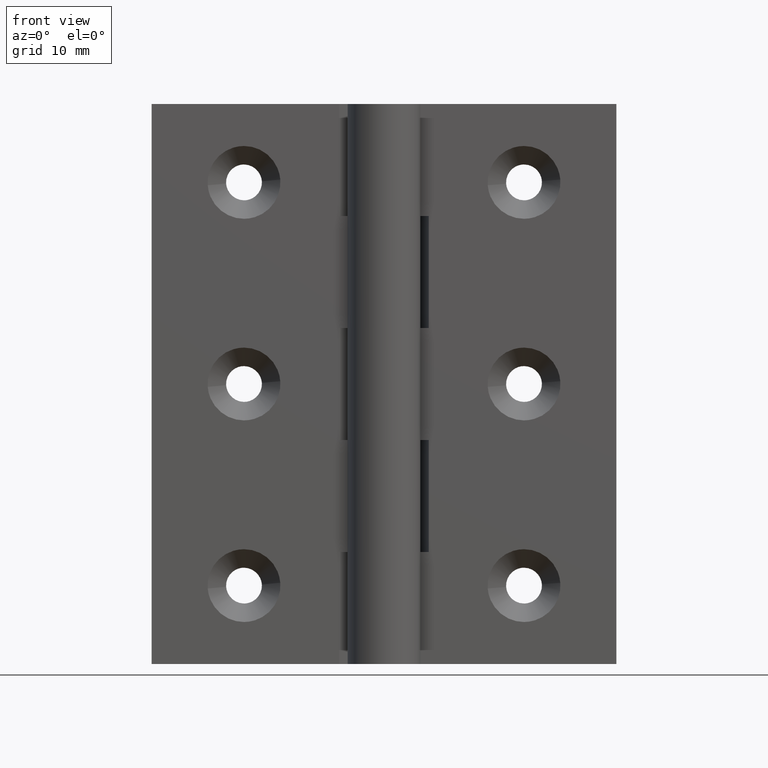
[diagram: clean part render]
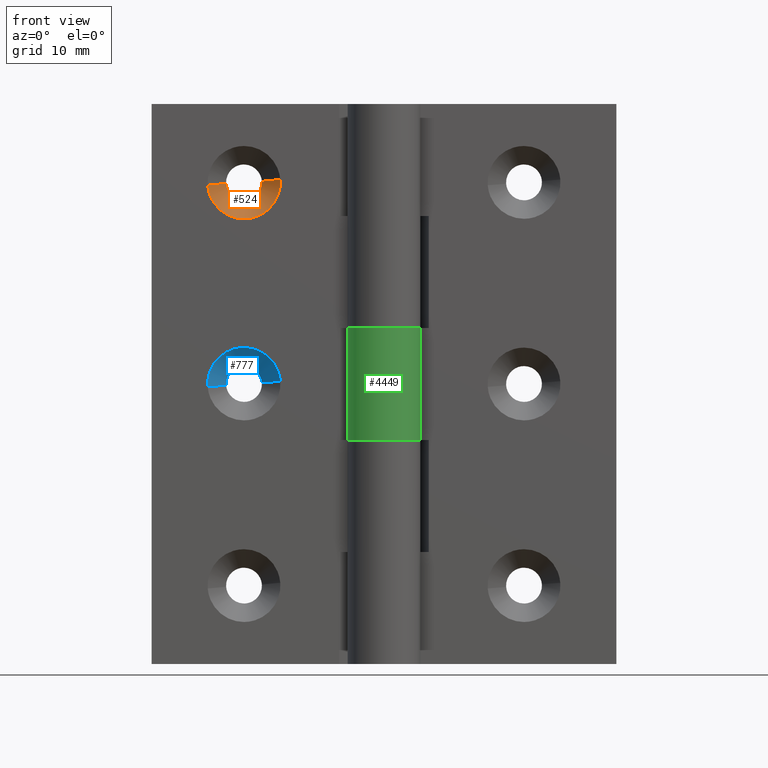
[diagram: same view with three faces highlighted in distinct colors, each labeled with its STEP entity id]
A machine part, front view with three faces highlighted in distinct colors.
Their STEP definitions:

[orange] entity #524 — the highlighted face is a freeform B-spline surface patch.
#265=CARTESIAN_POINT('',(-14.097007699373471,1.900001999909952,42.902322694046831));
#266=VERTEX_POINT('',#265);
#272=CARTESIAN_POINT('',(-12.499991999999899,1.900002000000000,41.399999999999999));
#273=VERTEX_POINT('',#272);
#274=CARTESIAN_POINT('',(-12.499991999999899,1.900002000000000,41.399999999999999));
#275=CARTESIAN_POINT('',(-13.979990768739732,1.900001999954976,41.413928623950511));
#276=CARTESIAN_POINT('',(-14.097007699373476,1.900001999909952,42.902322694046831));
#284=(BOUNDED_CURVE()B_SPLINE_CURVE(2,(#274,#275,#276),.UNSPECIFIED.,.F.,.U.)B_SPLINE_CURVE_WITH_KNOTS((3,3),(0.500000000000000,0.736331300558734),.UNSPECIFIED.)CURVE()GEOMETRIC_REPRESENTATION_ITEM()RATIONAL_B_SPLINE_CURVE((1.0,0.723120658691932,0.969723356017315))REPRESENTATION_ITEM(''));
#285=EDGE_CURVE('',#273,#266,#284,.T.);
#287=CARTESIAN_POINT('',(-10.902976322527110,1.900001999909949,43.097677664029021));
#288=VERTEX_POINT('',#287);
#289=CARTESIAN_POINT('',(-10.902976322527104,1.900001999909950,43.097677664029021));
#290=CARTESIAN_POINT('',(-10.899991999955720,1.900001999911255,43.048884421667537));
#291=CARTESIAN_POINT('',(-10.899991999956420,1.900001999912643,43.000000000004178));
#292=CARTESIAN_POINT('',(-10.899991999979202,1.900001999958038,41.400000000001995));
#293=CARTESIAN_POINT('',(-12.499991999999899,1.900002000000000,41.399999999999999));
#301=(BOUNDED_CURVE()B_SPLINE_CURVE(2,(#289,#290,#291,#292,#293),.UNSPECIFIED.,.F.,.U.)B_SPLINE_CURVE_WITH_KNOTS((3,2,3),(0.239332962158890,0.250000000000000,0.500000000000000),.UNSPECIFIED.)CURVE()GEOMETRIC_REPRESENTATION_ITEM()RATIONAL_B_SPLINE_CURVE((0.976072041495149,0.987502787806049,1.0,0.707106781186548,1.0))REPRESENTATION_ITEM(''));
#302=EDGE_CURVE('',#288,#273,#301,.T.);
#418=CARTESIAN_POINT('',(-9.260010665359770,0.250001999981075,43.254992061261852));
#419=VERTEX_POINT('',#418);
#420=CARTESIAN_POINT('',(-10.902976322527110,1.900001999909949,43.097677664029021));
#421=CARTESIAN_POINT('',(-9.260010665359770,0.250001999981075,43.254992061261852));
#422=QUASI_UNIFORM_CURVE('',1,(#420,#421),.UNSPECIFIED.,.F.,.U.);
#423=EDGE_CURVE('',#288,#419,#422,.T.);
#440=CARTESIAN_POINT('',(-15.739973334640030,0.250001999981076,42.745007938738162));
#441=VERTEX_POINT('',#440);
#457=CARTESIAN_POINT('',(-14.097007699373471,1.900001999909952,42.902322694046831));
#458=CARTESIAN_POINT('',(-15.739973334640030,0.250001999981076,42.745007938738162));
#459=QUASI_UNIFORM_CURVE('',1,(#457,#458),.UNSPECIFIED.,.F.,.U.);
#460=EDGE_CURVE('',#266,#441,#459,.T.);
#466=CARTESIAN_POINT('',(-14.057761516635404,1.941252000000000,42.926298323332155));
#467=CARTESIAN_POINT('',(-14.055861671773330,1.941252000000000,42.902158505547661));
#468=CARTESIAN_POINT('',(-13.931638778490631,1.941252000000000,41.323756990577714));
#469=CARTESIAN_POINT('',(-12.377693884534120,1.941252000000000,41.446055106043488));
#470=CARTESIAN_POINT('',(-10.823748990577611,1.941252000000000,41.568353221509263));
#471=CARTESIAN_POINT('',(-10.946914664080634,1.941252000000000,43.133321485507551));
#472=CARTESIAN_POINT('',(-10.947777138681614,1.941252000000000,43.144280264367239));
#473=CARTESIAN_POINT('',(-15.790202342544017,0.207720750000000,42.844332543264123));
#474=CARTESIAN_POINT('',(-15.786189624906610,0.207720750000000,42.793346131414665));
#475=CARTESIAN_POINT('',(-15.523814835892729,0.207720750000000,39.459558344593695));
#476=CARTESIAN_POINT('',(-12.241682590243160,0.207720750000000,39.717867754350429));
#477=CARTESIAN_POINT('',(-8.959550344593591,0.207720750000000,39.976177164107170));
#478=CARTESIAN_POINT('',(-9.219692148935298,0.207720750000000,43.281592190510764));
#479=CARTESIAN_POINT('',(-9.221513806646525,0.207720750000000,43.304738546348858));
#487=(BOUNDED_SURFACE()B_SPLINE_SURFACE(2,1,((#466,#473),(#467,#474),(#468,#475),(#469,#476),(#470,#477),(#471,#478),(#472,#479)),.UNSPECIFIED.,.F.,.F.,.U.)B_SPLINE_SURFACE_WITH_KNOTS((3,1,2,1,3),(2,2),(0.0,0.122207408300087,5.577037587886674,11.031867767473260,11.086752681912611),(0.0,2.452182741784073),.UNSPECIFIED.)GEOMETRIC_REPRESENTATION_ITEM()RATIONAL_B_SPLINE_SURFACE(((1.013123679381922,1.013123679381922),(1.006561839690961,1.006561839690961),(0.707106781186548,0.707106781186548),(1.0,1.0),(0.707106781186548,0.707106781186548),(1.002947006364121,1.002947006364121),(1.005894012728242,1.005894012728242)))REPRESENTATION_ITEM('')SURFACE());
#488=ORIENTED_EDGE('',*,*,#302,.T.);
#489=ORIENTED_EDGE('',*,*,#285,.T.);
#490=ORIENTED_EDGE('',*,*,#460,.T.);
#491=CARTESIAN_POINT('',(-12.499991999999899,0.250002000000000,39.749999999999993));
#492=VERTEX_POINT('',#491);
#493=CARTESIAN_POINT('',(-12.499991999999899,0.250002000000000,39.749999999999993));
#494=CARTESIAN_POINT('',(-15.504261097763770,0.250001999990538,39.749999999999240));
#495=CARTESIAN_POINT('',(-15.739973334640036,0.250001999981076,42.745007938738148));
#503=(BOUNDED_CURVE()B_SPLINE_CURVE(2,(#493,#494,#495),.UNSPECIFIED.,.F.,.U.)B_SPLINE_CURVE_WITH_KNOTS((3,3),(0.500000000000000,0.736331300625102),.UNSPECIFIED.)CURVE()GEOMETRIC_REPRESENTATION_ITEM()RATIONAL_B_SPLINE_CURVE((1.0,0.723120658614176,0.969723356155820))REPRESENTATION_ITEM(''));
#504=EDGE_CURVE('',#492,#441,#503,.T.);
#505=ORIENTED_EDGE('',*,*,#504,.F.);
#506=CARTESIAN_POINT('',(-9.260010665359770,0.250001999981076,43.254992061261845));
#507=CARTESIAN_POINT('',(-9.249991999981377,0.250001999981419,43.127692847849147));
#508=CARTESIAN_POINT('',(-9.249991999981747,0.250001999981791,43.000000000001428));
#509=CARTESIAN_POINT('',(-9.249991999991181,0.250001999991253,39.750000000000675));
#510=CARTESIAN_POINT('',(-12.499991999999899,0.250002000000000,39.749999999999993));
#518=(BOUNDED_CURVE()B_SPLINE_CURVE(2,(#506,#507,#508,#509,#510),.UNSPECIFIED.,.F.,.U.)B_SPLINE_CURVE_WITH_KNOTS((3,2,3),(0.236331300625102,0.250000000000000,0.500000000000000),.UNSPECIFIED.)CURVE()GEOMETRIC_REPRESENTATION_ITEM()RATIONAL_B_SPLINE_CURVE((0.969723356155820,0.983986122572371,1.0,0.707106781186547,1.0))REPRESENTATION_ITEM(''));
#519=EDGE_CURVE('',#419,#492,#518,.T.);
#520=ORIENTED_EDGE('',*,*,#519,.F.);
#521=ORIENTED_EDGE('',*,*,#423,.F.);
#522=EDGE_LOOP('',(#488,#489,#490,#505,#520,#521));
#523=FACE_OUTER_BOUND('',#522,.T.);
#524=ADVANCED_FACE('',(#523),#487,.F.);

[blue] entity #777 — the highlighted face is a freeform B-spline surface patch.
#577=CARTESIAN_POINT('',(-14.097007699373471,1.900001999909951,24.902322694046831));
#578=VERTEX_POINT('',#577);
#599=CARTESIAN_POINT('',(-10.902976322527110,1.900001999909949,25.097677664029021));
#600=VERTEX_POINT('',#599);
#658=CARTESIAN_POINT('',(-12.499991999999899,1.900002000000000,26.600000000000001));
#659=VERTEX_POINT('',#658);
#660=CARTESIAN_POINT('',(-12.499991999999899,1.900002000000000,26.600000000000001));
#661=CARTESIAN_POINT('',(-11.019993242210456,1.900001999954976,26.586071555087411));
#662=CARTESIAN_POINT('',(-10.902976322527106,1.900001999909950,25.097677664029018));
#670=(BOUNDED_CURVE()B_SPLINE_CURVE(2,(#660,#661,#662),.UNSPECIFIED.,.F.,.U.)B_SPLINE_CURVE_WITH_KNOTS((3,3),(0.0,0.236331300558734),.UNSPECIFIED.)CURVE()GEOMETRIC_REPRESENTATION_ITEM()RATIONAL_B_SPLINE_CURVE((1.0,0.723120658691931,0.969723356017315))REPRESENTATION_ITEM(''));
#671=EDGE_CURVE('',#659,#600,#670,.T.);
#673=CARTESIAN_POINT('',(-14.097007699373469,1.900001999909952,24.902322694046831));
#674=CARTESIAN_POINT('',(-14.099992000044045,1.900001999911257,24.951115757872387));
#675=CARTESIAN_POINT('',(-14.099992000043351,1.900001999912645,24.999999999995818));
#676=CARTESIAN_POINT('',(-14.099992000020579,1.900001999958038,26.599999999997998));
#677=CARTESIAN_POINT('',(-12.499991999999899,1.900002000000000,26.600000000000001));
#685=(BOUNDED_CURVE()B_SPLINE_CURVE(2,(#673,#674,#675,#676,#677),.UNSPECIFIED.,.F.,.U.)B_SPLINE_CURVE_WITH_KNOTS((3,2,3),(0.739333000846576,0.750000000000000,1.0),.UNSPECIFIED.)CURVE()GEOMETRIC_REPRESENTATION_ITEM()RATIONAL_B_SPLINE_CURVE((0.976072124410238,0.987502833131493,1.0,0.707106781186548,1.0))REPRESENTATION_ITEM(''));
#686=EDGE_CURVE('',#578,#659,#685,.T.);
#707=CARTESIAN_POINT('',(-10.942222510215357,1.941252000000000,25.073702017841651));
#708=CARTESIAN_POINT('',(-10.944122341827565,1.941252000000001,25.097841667270625));
#709=CARTESIAN_POINT('',(-11.068345221509171,1.941252000000000,26.676243009422279));
#710=CARTESIAN_POINT('',(-12.622290115465679,1.941252000000000,26.553944893956508));
#711=CARTESIAN_POINT('',(-14.176235009422188,1.941252000000000,26.431646778490727));
#712=CARTESIAN_POINT('',(-14.053069335987313,1.941252000000000,24.866678515358441));
#713=CARTESIAN_POINT('',(-14.052206861453712,1.941252000000001,24.855719737354647));
#714=CARTESIAN_POINT('',(-9.209781714168477,0.207720750000000,25.155668177339042));
#715=CARTESIAN_POINT('',(-9.213794403820462,0.207720750000000,25.206654233599870));
#716=CARTESIAN_POINT('',(-9.476169164107073,0.207720750000000,28.540441655406315));
#717=CARTESIAN_POINT('',(-12.758301409756641,0.207720750000000,28.282132245649571));
#718=CARTESIAN_POINT('',(-16.040433655406208,0.207720750000000,28.023822835892837));
#719=CARTESIAN_POINT('',(-15.780291851208455,0.207720750000000,24.718407811318340));
#720=CARTESIAN_POINT('',(-15.778470193639510,0.207720750000000,24.695261457287959));
#728=(BOUNDED_SURFACE()B_SPLINE_SURFACE(2,1,((#707,#714),(#708,#715),(#709,#716),(#710,#717),(#711,#718),(#712,#719),(#713,#720)),.UNSPECIFIED.,.F.,.F.,.U.)B_SPLINE_SURFACE_WITH_KNOTS((3,1,2,1,3),(2,2),(0.0,0.122206539077062,5.577036718663656,11.031866898250250,11.086751808365110),(0.0,2.452182733369774),.UNSPECIFIED.)GEOMETRIC_REPRESENTATION_ITEM()RATIONAL_B_SPLINE_SURFACE(((1.013123586037300,1.013123586037300),(1.006561793018650,1.006561793018650),(0.707106781186548,0.707106781186548),(1.0,1.0),(0.707106781186548,0.707106781186548),(1.002947006131921,1.002947006131921),(1.005894012263841,1.005894012263841)))REPRESENTATION_ITEM('')SURFACE());
#729=ORIENTED_EDGE('',*,*,#671,.T.);
#730=CARTESIAN_POINT('',(-9.260010665359770,0.250001999981075,25.254992061261849));
#731=VERTEX_POINT('',#730);
#732=CARTESIAN_POINT('',(-10.902976322527110,1.900001999909949,25.097677664029021));
#733=CARTESIAN_POINT('',(-9.260010665359770,0.250001999981075,25.254992061261849));
#734=QUASI_UNIFORM_CURVE('',1,(#732,#733),.UNSPECIFIED.,.F.,.U.);
#735=EDGE_CURVE('',#600,#731,#734,.T.);
#736=ORIENTED_EDGE('',*,*,#735,.T.);
#737=CARTESIAN_POINT('',(-12.499991999999899,0.250002000000000,28.250000000000000));
#738=VERTEX_POINT('',#737);
#739=CARTESIAN_POINT('',(-12.499991999999899,0.250002000000000,28.250000000000000));
#740=CARTESIAN_POINT('',(-9.495722902236034,0.250001999990538,28.250000000000746));
#741=CARTESIAN_POINT('',(-9.260010665359770,0.250001999981076,25.254992061261845));
#749=(BOUNDED_CURVE()B_SPLINE_CURVE(2,(#739,#740,#741),.UNSPECIFIED.,.F.,.U.)B_SPLINE_CURVE_WITH_KNOTS((3,3),(0.0,0.236331300625102),.UNSPECIFIED.)CURVE()GEOMETRIC_REPRESENTATION_ITEM()RATIONAL_B_SPLINE_CURVE((1.0,0.723120658614176,0.969723356155820))REPRESENTATION_ITEM(''));
#750=EDGE_CURVE('',#738,#731,#749,.T.);
#751=ORIENTED_EDGE('',*,*,#750,.F.);
#752=CARTESIAN_POINT('',(-15.739973334640030,0.250001999981075,24.745007938738159));
#753=VERTEX_POINT('',#752);
#754=CARTESIAN_POINT('',(-15.739973334640032,0.250001999981075,24.745007938738155));
#755=CARTESIAN_POINT('',(-15.749992000018418,0.250001999981419,24.872307152150846));
#756=CARTESIAN_POINT('',(-15.749992000018050,0.250001999981791,24.999999999998568));
#757=CARTESIAN_POINT('',(-15.749992000008623,0.250001999991253,28.249999999999311));
#758=CARTESIAN_POINT('',(-12.499991999999899,0.250002000000000,28.250000000000000));
#766=(BOUNDED_CURVE()B_SPLINE_CURVE(2,(#754,#755,#756,#757,#758),.UNSPECIFIED.,.F.,.U.)B_SPLINE_CURVE_WITH_KNOTS((3,2,3),(0.736331300625102,0.750000000000000,1.0),.UNSPECIFIED.)CURVE()GEOMETRIC_REPRESENTATION_ITEM()RATIONAL_B_SPLINE_CURVE((0.969723356155820,0.983986122572371,1.0,0.707106781186547,1.0))REPRESENTATION_ITEM(''));
#767=EDGE_CURVE('',#753,#738,#766,.T.);
#768=ORIENTED_EDGE('',*,*,#767,.F.);
#769=CARTESIAN_POINT('',(-14.097007699373471,1.900001999909951,24.902322694046831));
#770=CARTESIAN_POINT('',(-15.739973334640030,0.250001999981075,24.745007938738159));
#771=QUASI_UNIFORM_CURVE('',1,(#769,#770),.UNSPECIFIED.,.F.,.U.);
#772=EDGE_CURVE('',#578,#753,#771,.T.);
#773=ORIENTED_EDGE('',*,*,#772,.F.);
#774=ORIENTED_EDGE('',*,*,#686,.T.);
#775=EDGE_LOOP('',(#729,#736,#751,#768,#773,#774));
#776=FACE_OUTER_BOUND('',#775,.T.);
#777=ADVANCED_FACE('',(#776),#728,.F.);

[green] entity #4449 — the highlighted face is a freeform B-spline surface patch.
#3974=CARTESIAN_POINT('',(3.250002000000000,3.702784E-013,20.0));
#3975=VERTEX_POINT('',#3974);
#3981=CARTESIAN_POINT('',(-5.969960E-016,3.250002000000000,20.0));
#3982=VERTEX_POINT('',#3981);
#3983=CARTESIAN_POINT('',(3.250002000000000,3.702784E-013,20.0));
#3984=CARTESIAN_POINT('',(3.250049918959059,-0.249270514677766,19.999999999999989));
#3985=CARTESIAN_POINT('',(3.190073443926085,-0.767741409972411,20.000000000000082));
#3986=CARTESIAN_POINT('',(2.956530219125693,-1.399137075871402,19.999999999999869));
#3987=CARTESIAN_POINT('',(2.639012049906667,-1.919625351649527,20.000000000000199));
#3988=CARTESIAN_POINT('',(2.256775639500348,-2.369779914212564,19.999999999999769));
#3989=CARTESIAN_POINT('',(1.766767970210185,-2.753376902476921,20.000000000000259));
#3990=CARTESIAN_POINT('',(1.212660794662159,-3.032249824327842,19.999999999999510));
#3991=CARTESIAN_POINT('',(0.628685120506477,-3.210405724768060,20.000000000000270));
#3992=CARTESIAN_POINT('',(0.029690459604168,-3.269409350752353,19.999999999999911));
#3993=CARTESIAN_POINT('',(-0.518128578156040,-3.219648313771030,20.000000000000011));
#3994=CARTESIAN_POINT('',(-0.975026956003845,-3.111150313477209,19.999999999999861));
#3995=CARTESIAN_POINT('',(-1.450204781894148,-2.926199171118762,20.000000000000860));
#3996=CARTESIAN_POINT('',(-1.939530136756429,-2.631901743261304,19.999999999998060));
#3997=CARTESIAN_POINT('',(-2.431935804988544,-2.191095429200221,20.000000000002409));
#3998=CARTESIAN_POINT('',(-2.806291184407336,-1.681487776348931,19.999999999998909));
#3999=CARTESIAN_POINT('',(-3.046901365825395,-1.164425534288952,20.000000000000199));
#4000=CARTESIAN_POINT('',(-3.191826884045819,-0.675894843653188,20.000000000000050));
#4001=CARTESIAN_POINT('',(-3.273629815598539,-0.080948537794947,19.999999999999972));
#4002=CARTESIAN_POINT('',(-3.226076541156981,0.550265760520611,20.000000000000021));
#4003=CARTESIAN_POINT('',(-3.036910448489432,1.213940070837786,20.0));
#4004=CARTESIAN_POINT('',(-2.763683796852178,1.750608918300488,20.0));
#4005=CARTESIAN_POINT('',(-2.335598550035752,2.292249895212845,20.0));
#4006=CARTESIAN_POINT('',(-1.897628525060322,2.660796161790543,20.000000000000021));
#4007=CARTESIAN_POINT('',(-1.377491885642820,2.958567629022809,19.999999999999769));
#4008=CARTESIAN_POINT('',(-0.787656045750770,3.183020008981669,20.000000000001300));
#4009=CARTESIAN_POINT('',(-0.289161316883300,3.250089394289254,19.999999999997261));
#4010=CARTESIAN_POINT('',(-5.969960E-016,3.250002000000000,20.0));
#4011=B_SPLINE_CURVE_WITH_KNOTS('',3,(#3983,#3984,#3985,#3986,#3987,#3988,#3989,#3990,#3991,#3992,#3993,#3994,#3995,#3996,#3997,#3998,#3999,#4000,#4001,#4002,#4003,#4004,#4005,#4006,#4007,#4008,#4009,#4010),.UNSPECIFIED.,.F.,.U.,(4,1,1,1,1,1,1,1,1,1,1,1,1,1,1,1,1,1,1,1,1,1,1,1,1,4),(0.000000224491878,0.747806681975463,1.555456634689847,2.004146699266732,2.572498326494548,3.320329038787158,3.858758776557327,4.427094734719820,5.144974828352304,5.653489669545408,6.072264374721351,6.550874801063525,7.179059398900561,7.777316961122497,8.525148185267319,9.063575953042090,9.482346708397897,10.050717047947350,10.858302998461680,11.366830310109661,12.114657760231211,12.653093548806860,13.430837154854210,13.819700094309820,14.447863978739440,15.315327666879829),.UNSPECIFIED.);
#4012=EDGE_CURVE('',#3975,#3982,#4011,.T.);
#4179=CARTESIAN_POINT('',(3.250002000000000,3.702784E-013,30.0));
#4180=VERTEX_POINT('',#4179);
#4200=CARTESIAN_POINT('',(-5.969960E-016,3.250002000000000,30.0));
#4201=VERTEX_POINT('',#4200);
#4207=CARTESIAN_POINT('',(3.250002000000000,3.702784E-013,30.0));
#4208=CARTESIAN_POINT('',(3.250050546050888,-0.249272523065064,30.000000000000050));
#4209=CARTESIAN_POINT('',(3.203877617537134,-0.648071525598448,29.999999999999972));
#4210=CARTESIAN_POINT('',(3.006588181952667,-1.288002959588361,30.000000000000011));
#4211=CARTESIAN_POINT('',(2.697837425917492,-1.863538103943281,30.000000000000028));
#4212=CARTESIAN_POINT('',(2.260180189356885,-2.359944577371876,29.999999999999961));
#4213=CARTESIAN_POINT('',(1.773842670166365,-2.744310679507608,30.000000000000270));
#4214=CARTESIAN_POINT('',(1.260544557321357,-3.017674926242588,29.999999999999218));
#4215=CARTESIAN_POINT('',(0.733980760078563,-3.178248168166233,30.000000000000281));
#4216=CARTESIAN_POINT('',(0.161035351298157,-3.264181752870088,29.999999999999901));
#4217=CARTESIAN_POINT('',(-0.391008947667336,-3.247229407049459,30.000000000000039));
#4218=CARTESIAN_POINT('',(-1.005152584971917,-3.107313636638316,29.999999999999918));
#4219=CARTESIAN_POINT('',(-1.495347628678839,-2.903383213712560,30.000000000000231));
#4220=CARTESIAN_POINT('',(-1.976828710641280,-2.598493971632375,29.999999999999559));
#4221=CARTESIAN_POINT('',(-2.364771054720686,-2.251192632237258,30.000000000000949));
#4222=CARTESIAN_POINT('',(-2.702124460065022,-1.829669811618363,29.999999999999758));
#4223=CARTESIAN_POINT('',(-2.964920261335770,-1.369086585136627,30.000000000000149));
#4224=CARTESIAN_POINT('',(-3.139087979218512,-0.889258941082054,29.999999999999940));
#4225=CARTESIAN_POINT('',(-3.234586058729895,-0.409082672435315,30.000000000000021));
#4226=CARTESIAN_POINT('',(-3.265495053303224,0.119898648889961,30.000000000000011));
#4227=CARTESIAN_POINT('',(-3.192771194031366,0.717091062704705,29.999999999999989));
#4228=CARTESIAN_POINT('',(-2.995218558543299,1.305924651180098,30.000000000000021));
#4229=CARTESIAN_POINT('',(-2.700937952704550,1.840613671720459,29.999999999999989));
#4230=CARTESIAN_POINT('',(-2.325818306545356,2.297698073591015,30.000000000000050));
#4231=CARTESIAN_POINT('',(-1.849141783783688,2.695055826391167,29.999999999999851));
#4232=CARTESIAN_POINT('',(-1.359764265305173,2.969296705553197,29.999999999998849));
#4233=CARTESIAN_POINT('',(-0.737792161665639,3.189712658604946,30.000000000005091));
#4234=CARTESIAN_POINT('',(-0.289164636280334,3.250089026339513,29.999999999997151));
#4235=CARTESIAN_POINT('',(-5.969960E-016,3.250002000000000,30.0));
#4236=B_SPLINE_CURVE_WITH_KNOTS('',3,(#4207,#4208,#4209,#4210,#4211,#4212,#4213,#4214,#4215,#4216,#4217,#4218,#4219,#4220,#4221,#4222,#4223,#4224,#4225,#4226,#4227,#4228,#4229,#4230,#4231,#4232,#4233,#4234,#4235),.UNSPECIFIED.,.F.,.U.,(4,1,1,1,1,1,1,1,1,1,1,1,1,1,1,1,1,1,1,1,1,1,1,1,1,1,4),(0.000000224491878,0.747806681975463,1.196487273712805,2.004146699266732,2.692149937518645,3.170757788782687,3.858758776557327,4.427094734719820,4.815968076639269,5.593682435883043,6.072264374721351,6.700448893184040,7.179059398900561,7.777316961122497,8.255929338027173,8.794365004440632,9.362716568252232,9.781475748524958,10.260066322280160,10.948057391638541,11.576223288185780,12.114657760231211,12.772745238290399,13.341092740025079,13.969271309622259,14.447863978739440,15.315327666879829),.UNSPECIFIED.);
#4237=EDGE_CURVE('',#4180,#4201,#4236,.T.);
#4371=CARTESIAN_POINT('',(-5.969960E-016,3.250002000000000,20.0));
#4372=CARTESIAN_POINT('',(-5.969960E-016,3.250002000000000,30.0));
#4373=QUASI_UNIFORM_CURVE('',1,(#4371,#4372),.UNSPECIFIED.,.F.,.U.);
#4374=EDGE_CURVE('',#3982,#4201,#4373,.T.);
#4410=CARTESIAN_POINT('',(3.250002000000000,3.702784E-013,20.0));
#4411=CARTESIAN_POINT('',(3.250002000000000,3.702784E-013,30.0));
#4412=QUASI_UNIFORM_CURVE('',1,(#4410,#4411),.UNSPECIFIED.,.F.,.U.);
#4413=EDGE_CURVE('',#3975,#4180,#4412,.T.);
#4421=CARTESIAN_POINT('',(3.248888305485200,0.085075134354859,19.750000000000000));
#4422=CARTESIAN_POINT('',(3.248888305485200,0.085075134354859,30.256250000000009));
#4423=CARTESIAN_POINT('',(3.336474879687820,-3.259721189533039,19.750000000000004));
#4424=CARTESIAN_POINT('',(3.336474879687820,-3.259721189533039,30.256250000000009));
#4425=CARTESIAN_POINT('',(-0.009453859266558,-3.249988249909369,19.750000000000000));
#4426=CARTESIAN_POINT('',(-0.009453859266558,-3.249988249909369,30.256250000000009));
#4427=CARTESIAN_POINT('',(-3.355382598220935,-3.240255310285698,19.750000000000004));
#4428=CARTESIAN_POINT('',(-3.355382598220935,-3.240255310285698,30.256250000000009));
#4429=CARTESIAN_POINT('',(-3.248338379809591,0.103974853979203,19.750000000000000));
#4430=CARTESIAN_POINT('',(-3.248338379809591,0.103974853979203,30.256250000000009));
#4431=CARTESIAN_POINT('',(-3.141294161398246,3.448205018244104,19.750000000000004));
#4432=CARTESIAN_POINT('',(-3.141294161398246,3.448205018244104,30.256250000000009));
#4433=CARTESIAN_POINT('',(0.198407875584990,3.243940091140686,19.750000000000000));
#4434=CARTESIAN_POINT('',(0.198407875584990,3.243940091140686,30.256250000000009));
#4442=(BOUNDED_SURFACE()B_SPLINE_SURFACE(1,2,((#4421,#4423,#4425,#4427,#4429,#4431,#4433),(#4422,#4424,#4426,#4428,#4430,#4432,#4434)),.UNSPECIFIED.,.F.,.F.,.U.)B_SPLINE_SURFACE_WITH_KNOTS((2,2),(3,2,2,3),(0.0,10.506250000000010),(0.0,5.495875237349075,10.991750474698151,16.487625712047230),.UNSPECIFIED.)GEOMETRIC_REPRESENTATION_ITEM()RATIONAL_B_SPLINE_SURFACE(((1.0,0.696747903210655,1.0,0.696747903210655,1.0,0.696747903210655,1.0),(1.0,0.696747903210655,1.0,0.696747903210655,1.0,0.696747903210655,1.0)))REPRESENTATION_ITEM('')SURFACE());
#4443=ORIENTED_EDGE('',*,*,#4012,.F.);
#4444=ORIENTED_EDGE('',*,*,#4413,.T.);
#4445=ORIENTED_EDGE('',*,*,#4237,.T.);
#4446=ORIENTED_EDGE('',*,*,#4374,.F.);
#4447=EDGE_LOOP('',(#4443,#4444,#4445,#4446));
#4448=FACE_OUTER_BOUND('',#4447,.T.);
#4449=ADVANCED_FACE('',(#4448),#4442,.T.);